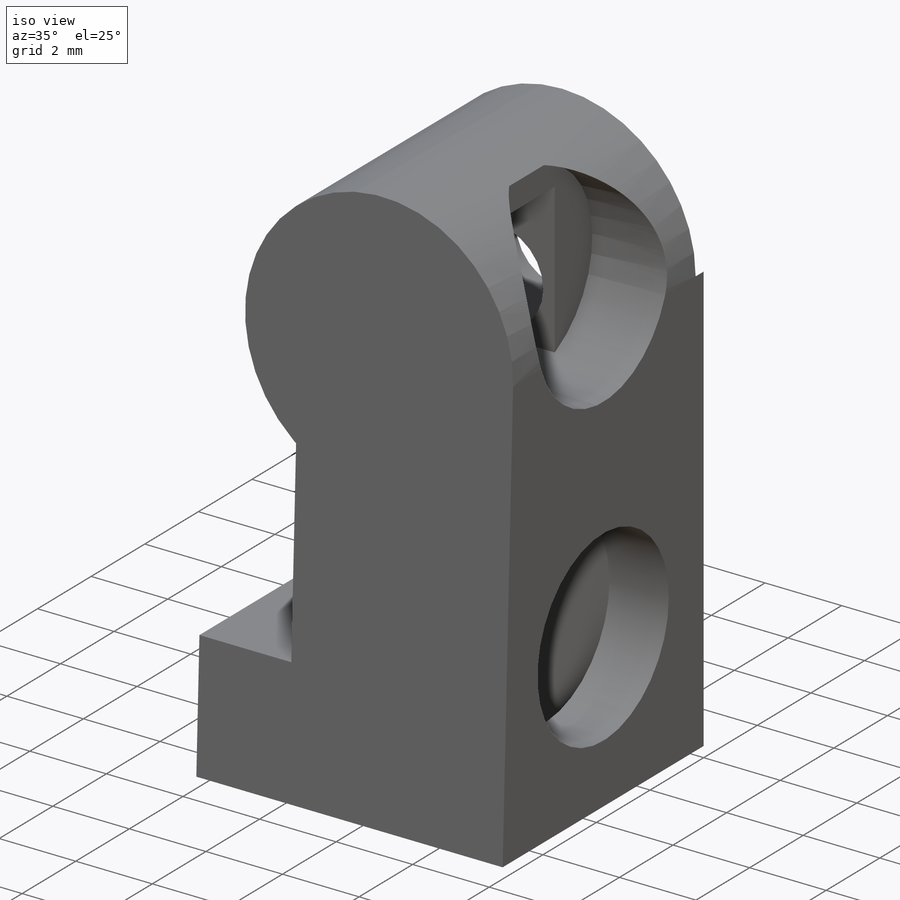
[diagram: iso view]
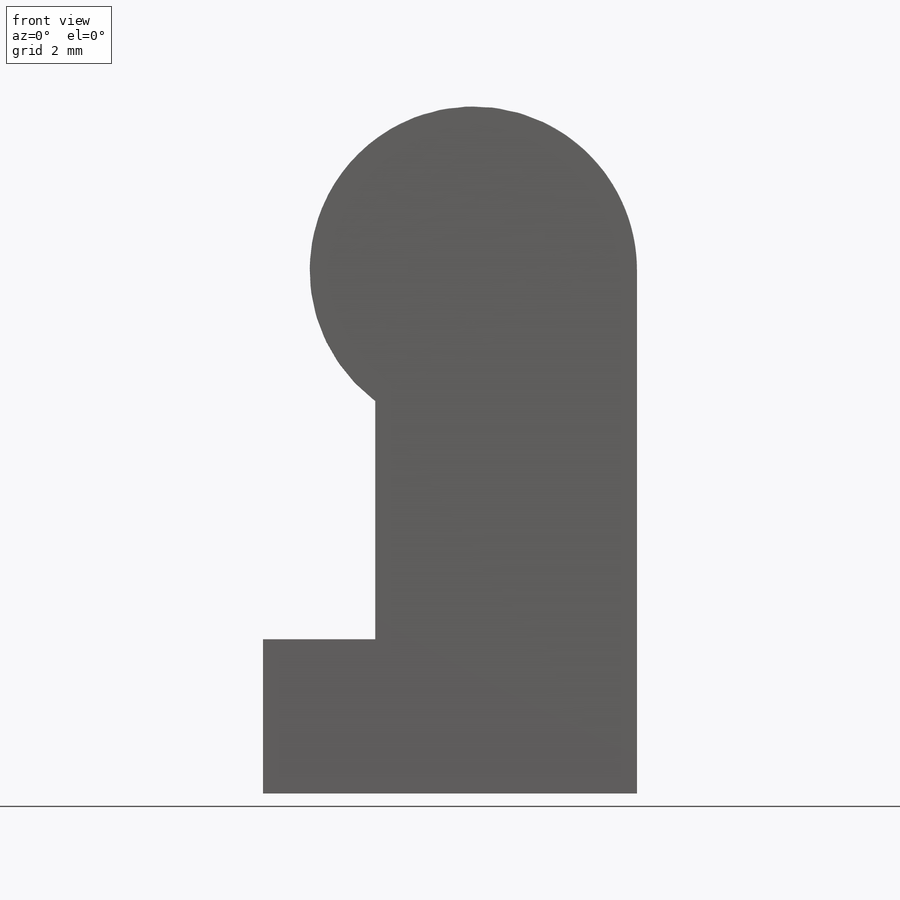
[diagram: front view]
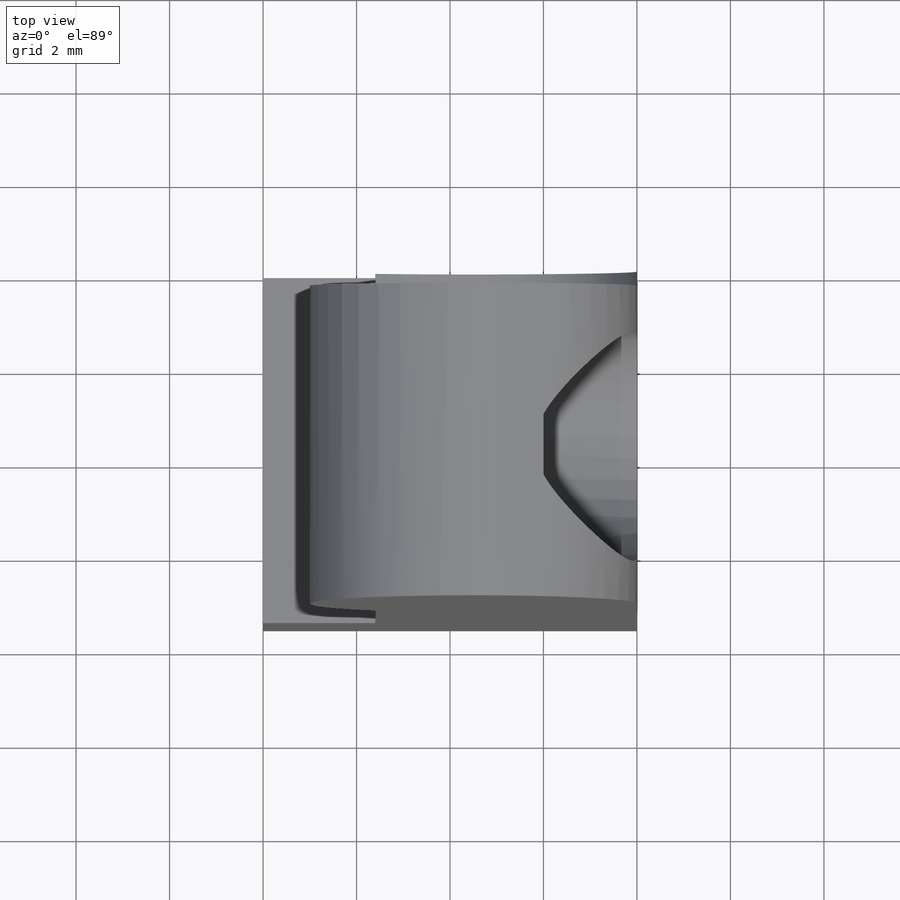
[diagram: top view]
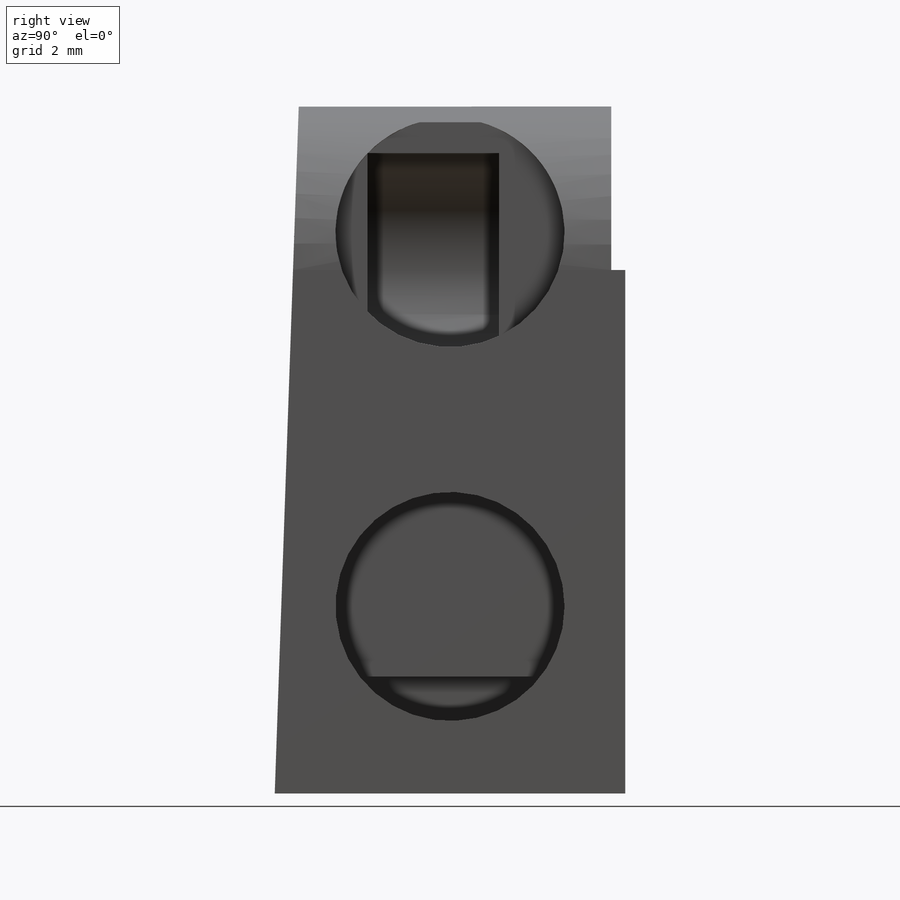
[diagram: right view]
SOLIDWORKS PART (.sldprt)
format: sldprt  version: not decoded by parser v0  size: 289,280 bytes
history: native  units: mm
features: sketch x7, cut_extrude x6, material x1, extrude x1 (+11 scaffold rows collapsed)
feature tree (26):
  scaffold x11  (default folders/planes/origin — collapsed)
  material  "Material <not specified>"
  sketch  "Sketch1"  dims[D3=7.0mm D6=1.2mm D1=8.0mm D2=11.2mm D4=3.3mm D5=5.6mm]
  extrude  "Boss-Extrude1"  Depth=7.5mm
  sketch  "Sketch3"  dims[D1=4.9mm D2=4.9mm]
  cut_extrude  "Cut-Extrude1"  Depth=2.5mm
  sketch  "Sketch4"  dims[c1.D1=2.5mm c1.D2=2.4mm c2.D1=3.0mm]
  cut_extrude  "Cut-Extrude2"  Depth=6.3mm
  sketch  "Sketch5"  dims[c1.D1=4.9mm c1.D2=3.5mm c1.D3=~5.288166mm c2.D2=7.5mm c2.D3=3.75mm c2.D4=8.0mm c2.D5=4.0mm c2.D1=2.0deg]
  cut_extrude  "Cut-Extrude3"  Depth=2mm
  sketch  "Sketch6"
  cut_extrude  "Cut-Extrude17"  Depth=0.3mm
  sketch  "Sketch7"  dims[c1.D1=2.4mm c1.D2=1.0mm c2.D1=2.4mm c2.D3=0.0mm]
  cut_extrude  "Cut-Extrude15"  Depth=1mm
  sketch  "Sketch9"  dims[D1=2.4mm]
  cut_extrude  "Cut-Extrude18"  Depth=3.3mm
decode coverage: 13 of 14 modeling features carry decoded parameters
note: ~ marks probable driven/reference dimensions
note: suppression state not decoded; provenance and decode notes live in map.json
